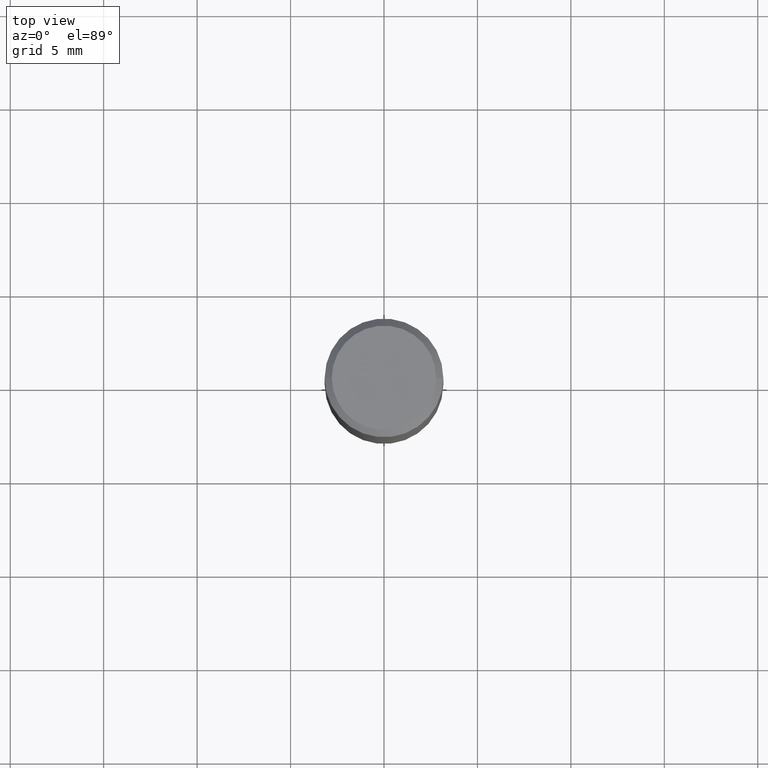
[diagram: clean part render]
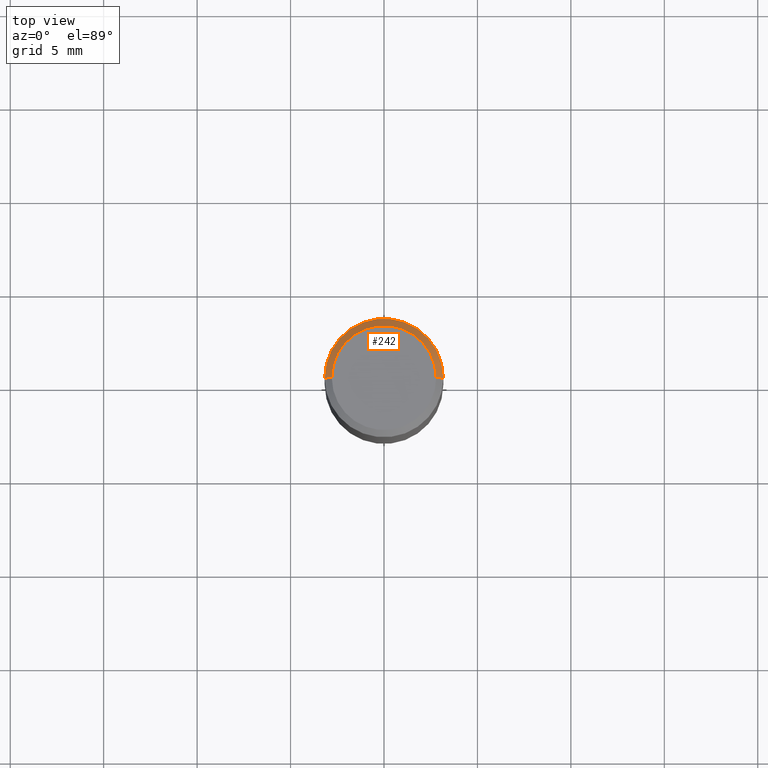
[diagram: same view with one face highlighted and labeled with its STEP entity id]
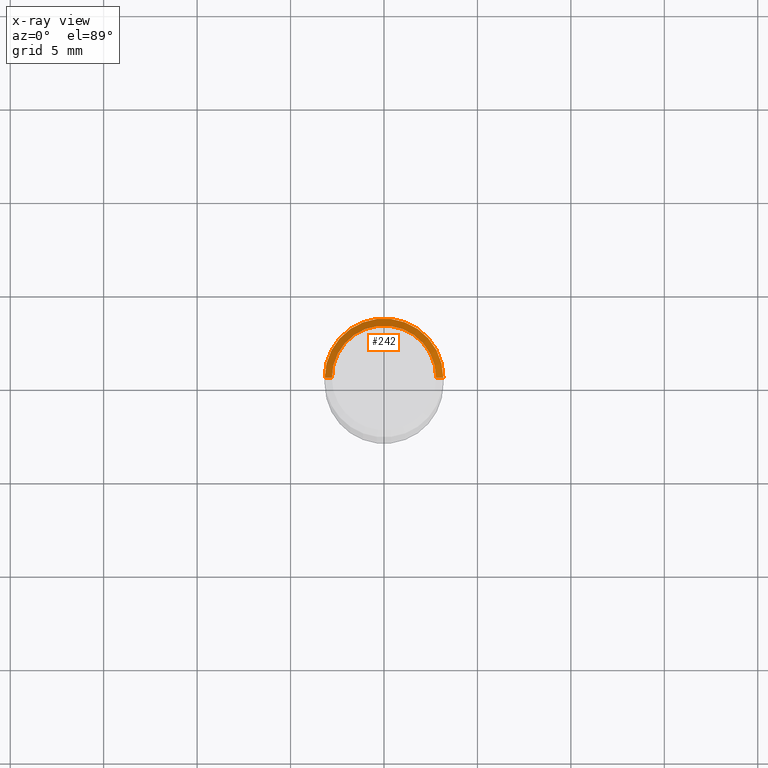
[diagram: x-ray of the same camera — body ghosted, the highlighted face saturated]
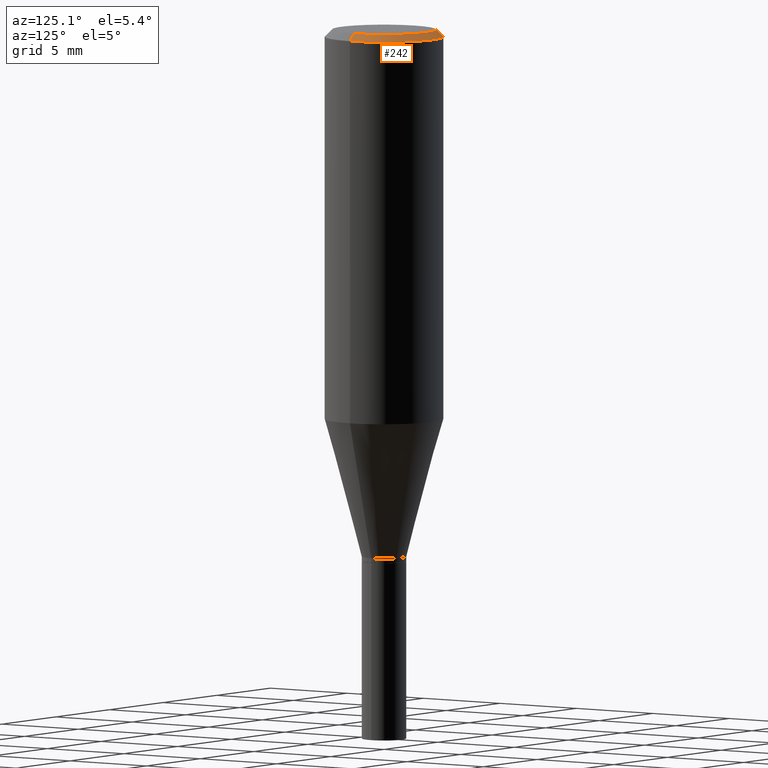
[diagram: same view with one face highlighted and labeled with its STEP entity id]
A machine part, top view. The second image highlights one B-rep face of the part: STEP entity #242.
The next image is the same camera in x-ray: the body ghosted, the highlighted face saturated — about 0% of this face is hidden behind the body in this view.
A second angle (auxiliary view) of the same face is appended — the face is thin or edge-on in the first view.
In plain terms, the highlighted conical surface has half-angle 45 deg.
Its self-contained STEP definition (entity closure, byte-faithful):
#11 = DIRECTION ( 'NONE',  ( 1.000000000000000000, -6.982962677686266711E-15, 0.000000000000000000 ) ) ;
#66 = ORIENTED_EDGE ( 'NONE', *, *, #196, .T. ) ;
#69 = AXIS2_PLACEMENT_3D ( 'NONE', #156, #409, #154 ) ;
#86 = CARTESIAN_POINT ( 'NONE',  ( 3.668203209277705088E-31, -5.237222008264718399E-17, -0.01499999999999999944 ) ) ;
#89 = CIRCLE ( 'NONE', #115, 0.1100000000000000006 ) ;
#95 = VERTEX_POINT ( 'NONE', #429 ) ;
#102 = DIRECTION ( 'NONE',  ( -2.445468806185136597E-29, 3.491481338843145583E-15, 1.000000000000000000 ) ) ;
#108 = VERTEX_POINT ( 'NONE', #220 ) ;
#115 = AXIS2_PLACEMENT_3D ( 'NONE', #448, #102, #133 ) ;
#133 = DIRECTION ( 'NONE',  ( 1.000000000000000000, -6.982962677686266711E-15, 4.852736867747365646E-29 ) ) ;
#137 = ORIENTED_EDGE ( 'NONE', *, *, #457, .T. ) ;
#142 = CONICAL_SURFACE ( 'NONE', #69, 0.1250000000000000000, 0.7853981633974328469 ) ;
#146 = EDGE_CURVE ( 'NONE', #459, #95, #199, .T. ) ;
#154 = DIRECTION ( 'NONE',  ( -1.000000000000000000, 6.982962677686266711E-15, 0.000000000000000000 ) ) ;
#156 = CARTESIAN_POINT ( 'NONE',  ( 3.668203209277705088E-31, -5.237222008264718399E-17, -0.01499999999999999944 ) ) ;
#196 = EDGE_CURVE ( 'NONE', #108, #95, #203, .T. ) ;
#199 = LINE ( 'NONE', #299, #446 ) ;
#203 = CIRCLE ( 'NONE', #455, 0.1250000000000000000 ) ;
#206 = LINE ( 'NONE', #346, #434 ) ;
#207 = VERTEX_POINT ( 'NONE', #226 ) ;
#220 = CARTESIAN_POINT ( 'NONE',  ( 0.1250000000000000000, -9.252425547934304180E-16, -0.01499999999999999944 ) ) ;
#226 = CARTESIAN_POINT ( 'NONE',  ( 0.1100000000000000006, -8.322946247794777961E-16, 4.589658644116375565E-16 ) ) ;
#238 = ORIENTED_EDGE ( 'NONE', *, *, #146, .F. ) ;
#242 = ADVANCED_FACE ( 'NONE', ( #365 ), #142, .T. ) ;
#299 = CARTESIAN_POINT ( 'NONE',  ( -0.1250000000000000000, 8.204981146281362596E-16, -0.01499999999999999944 ) ) ;
#305 = CARTESIAN_POINT ( 'NONE',  ( -0.1100000000000000006, 7.943120045868136075E-16, 4.589658644116265124E-16 ) ) ;
#336 = DIRECTION ( 'NONE',  ( -2.445468806185136597E-29, 3.491481338843145583E-15, 1.000000000000000000 ) ) ;
#346 = CARTESIAN_POINT ( 'NONE',  ( 0.1250000000000000000, -9.099344698040885245E-16, -0.01499999999999999944 ) ) ;
#364 = EDGE_CURVE ( 'NONE', #207, #459, #89, .T. ) ;
#365 = FACE_OUTER_BOUND ( 'NONE', #453, .T. ) ;
#387 = ORIENTED_EDGE ( 'NONE', *, *, #364, .F. ) ;
#409 = DIRECTION ( 'NONE',  ( 2.445468806185136597E-29, -3.491481338843145583E-15, -1.000000000000000000 ) ) ;
#429 = CARTESIAN_POINT ( 'NONE',  ( -0.1250000000000000000, -5.756719731993345446E-16, -0.01499999999999999944 ) ) ;
#434 = VECTOR ( 'NONE', #458, 39.37007874015748143 ) ;
#446 = VECTOR ( 'NONE', #451, 39.37007874015748143 ) ;
#448 = CARTESIAN_POINT ( 'NONE',  ( -1.122386704522442906E-44, 1.602470750759226619E-30, 4.589658644116320345E-16 ) ) ;
#451 = DIRECTION ( 'NONE',  ( -0.7071067811865365815, 2.468850131082142676E-15, -0.7071067811865584529 ) ) ;
#453 = EDGE_LOOP ( 'NONE', ( #387, #137, #66, #238 ) ) ;
#455 = AXIS2_PLACEMENT_3D ( 'NONE', #86, #336, #11 ) ;
#457 = EDGE_CURVE ( 'NONE', #207, #108, #206, .T. ) ;
#458 = DIRECTION ( 'NONE',  ( 0.7071067811865365815, -7.319954787623219758E-15, -0.7071067811865584529 ) ) ;
#459 = VERTEX_POINT ( 'NONE', #305 ) ;